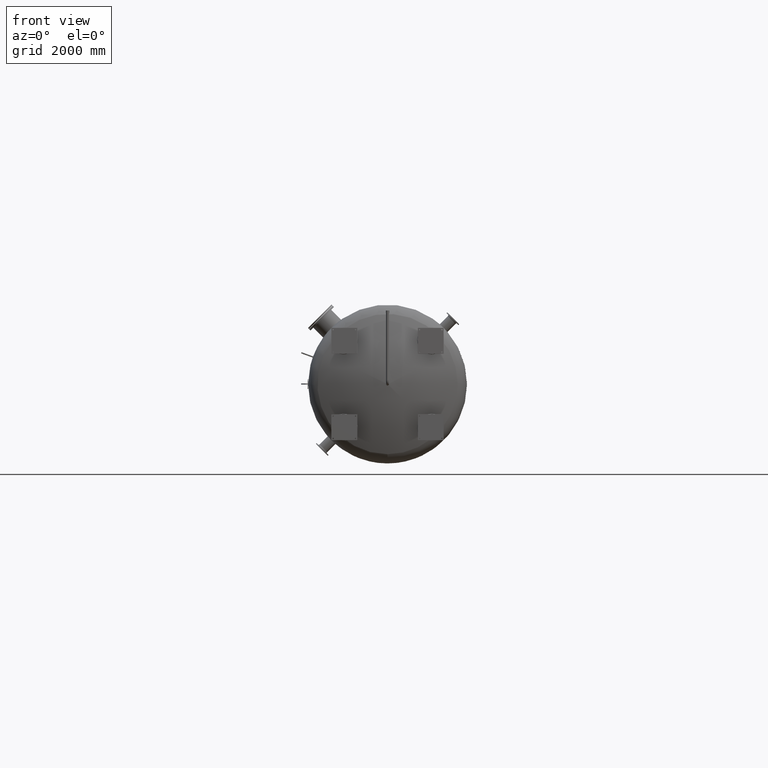
[diagram: clean part render]
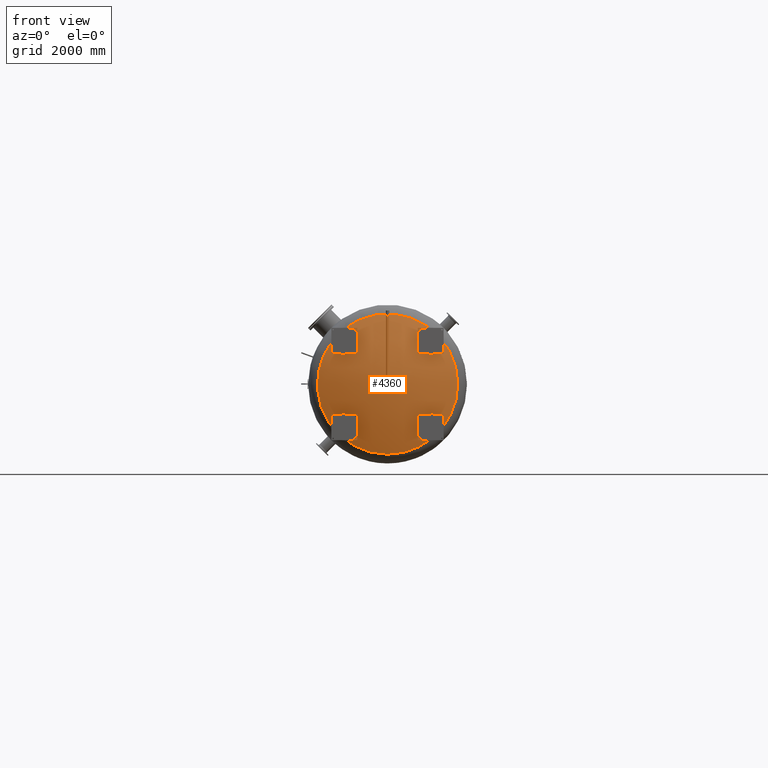
[diagram: same view with one face highlighted and labeled with its STEP entity id]
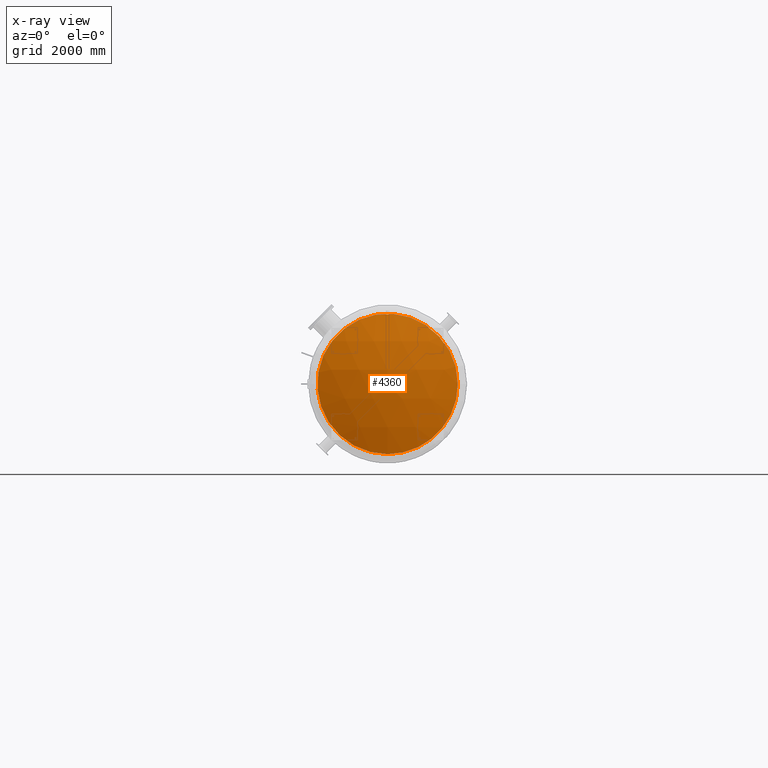
[diagram: x-ray of the same camera — body ghosted, the highlighted face saturated]
A machine part, front view. The second image highlights one B-rep face of the part: STEP entity #4360.
The next image is the same camera in x-ray: the body ghosted, the highlighted face saturated — about 0% of this face is hidden behind the body in this view.
In plain terms, the highlighted spherical surface has radius 3213 mm.
Its self-contained STEP definition (entity closure, byte-faithful):
#398=FACE_BOUND('',#846,.T.);
#578=SPHERICAL_SURFACE('',#5127,3213.);
#606=FACE_OUTER_BOUND('',#845,.T.);
#845=EDGE_LOOP('',(#3028,#3029));
#846=EDGE_LOOP('',(#3030));
#1717=CIRCLE('',#5118,30.15);
#1719=CIRCLE('',#5121,1413.496875);
#1720=CIRCLE('',#5122,1413.496875);
#2006=VERTEX_POINT('',#7144);
#2008=VERTEX_POINT('',#7150);
#2009=VERTEX_POINT('',#7151);
#2414=EDGE_CURVE('',#2006,#2006,#1717,.T.);
#2417=EDGE_CURVE('',#2008,#2009,#1719,.T.);
#2418=EDGE_CURVE('',#2009,#2008,#1720,.T.);
#3028=ORIENTED_EDGE('',*,*,#2417,.T.);
#3029=ORIENTED_EDGE('',*,*,#2418,.T.);
#3030=ORIENTED_EDGE('',*,*,#2414,.T.);
#4360=ADVANCED_FACE('',(#606,#398),#578,.T.);
#5118=AXIS2_PLACEMENT_3D('',#7145,#5745,#5746);
#5121=AXIS2_PLACEMENT_3D('',#7152,#5752,#5753);
#5122=AXIS2_PLACEMENT_3D('',#7153,#5754,#5755);
#5127=AXIS2_PLACEMENT_3D('',#7161,#5764,#5765);
#5745=DIRECTION('center_axis',(0.,-1.,0.));
#5746=DIRECTION('ref_axis',(1.,0.,0.));
#5752=DIRECTION('center_axis',(-5.43433977528598E-16,1.,0.));
#5753=DIRECTION('ref_axis',(-1.,-5.43434654914909E-16,0.));
#5754=DIRECTION('center_axis',(-5.43433977528598E-16,1.,0.));
#5755=DIRECTION('ref_axis',(-1.,-5.43434654914909E-16,0.));
#5764=DIRECTION('center_axis',(6.12323399573677E-17,0.,1.));
#5765=DIRECTION('ref_axis',(1.,0.,0.));
#7144=CARTESIAN_POINT('',(-30.15,678.143536801769,-3.69231009942927E-15));
#7145=CARTESIAN_POINT('Origin',(0.,678.143536801769,0.));
#7150=CARTESIAN_POINT('',(-1413.496875,350.661159942622,0.));
#7151=CARTESIAN_POINT('',(-3.35614432275452E-13,350.661159942623,-1413.496875));
#7152=CARTESIAN_POINT('Origin',(-1.72797620518409E-13,350.661159942623,
0.));
#7153=CARTESIAN_POINT('Origin',(-1.72797620518409E-13,350.661159942623,
0.));
#7161=CARTESIAN_POINT('Origin',(1.3952138227454E-12,-2534.715,0.));